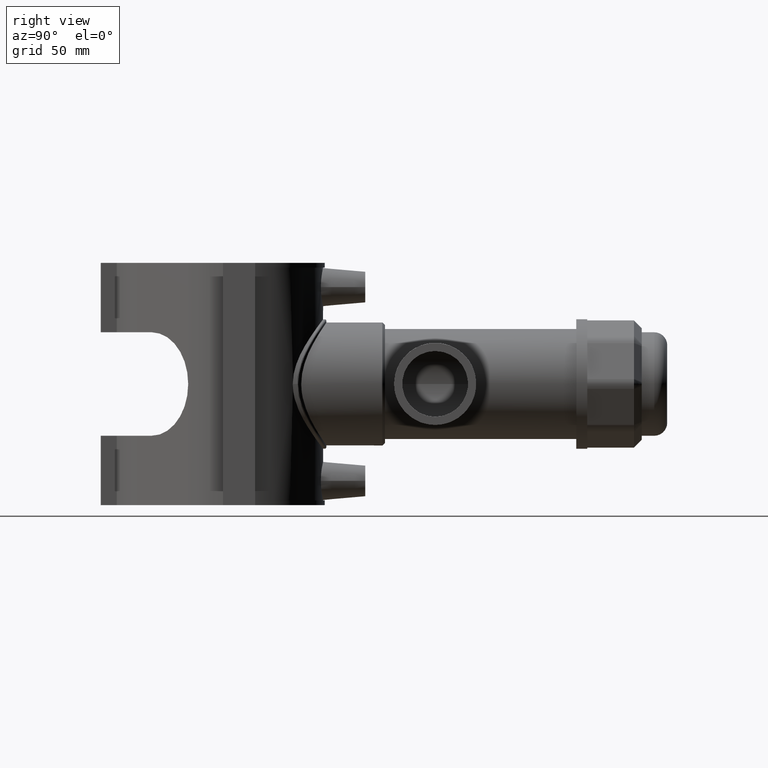
[diagram: clean part render]
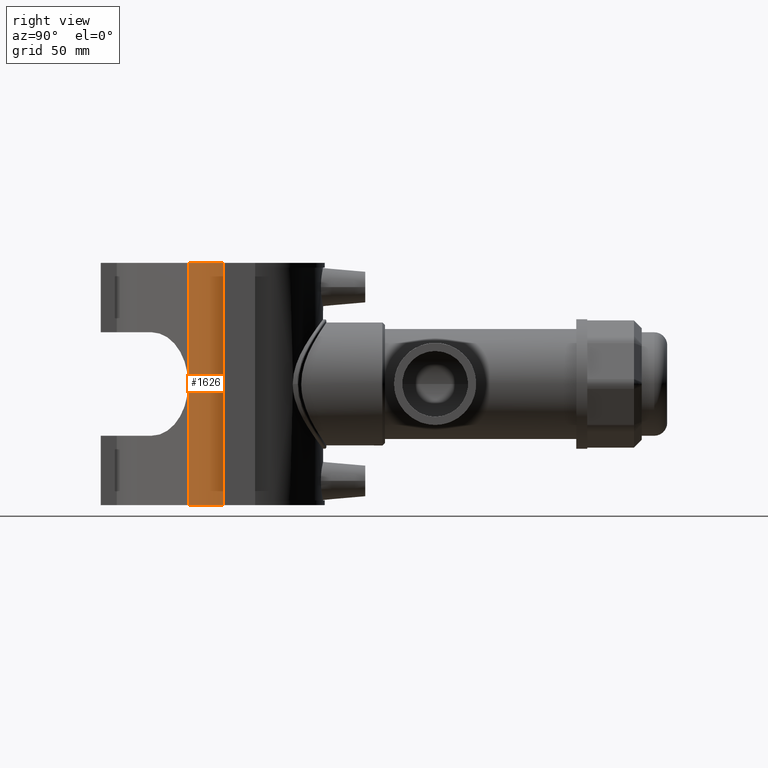
[diagram: same view with one face highlighted and labeled with its STEP entity id]
A machine part, right view. The second image highlights one B-rep face of the part: STEP entity #1626.
In plain terms, the highlighted cylindrical surface (partial cylindrical patch) has radius 34.9751 mm, axis along (0, 0, -1).
Its self-contained STEP definition (entity closure, byte-faithful):
#142=LINE('',#3249,#277);
#143=LINE('',#3252,#278);
#159=LINE('',#3294,#294);
#277=VECTOR('',#2224,59.);
#278=VECTOR('',#2227,59.);
#294=VECTOR('',#2271,118.);
#372=CYLINDRICAL_SURFACE('',#1799,34.9751164565775);
#470=FACE_OUTER_BOUND('',#604,.T.);
#604=EDGE_LOOP('',(#1433,#1434,#1435,#1436,#1437));
#678=CIRCLE('',#1800,34.9751164565775);
#679=CIRCLE('',#1801,34.9751164565775);
#800=VERTEX_POINT('',#3209);
#811=VERTEX_POINT('',#3247);
#812=VERTEX_POINT('',#3251);
#823=VERTEX_POINT('',#3291);
#824=VERTEX_POINT('',#3293);
#1013=EDGE_CURVE('',#800,#811,#142,.T.);
#1014=EDGE_CURVE('',#812,#800,#143,.T.);
#1034=EDGE_CURVE('',#823,#811,#678,.T.);
#1035=EDGE_CURVE('',#824,#823,#159,.T.);
#1036=EDGE_CURVE('',#812,#824,#679,.T.);
#1433=ORIENTED_EDGE('',*,*,#1034,.F.);
#1434=ORIENTED_EDGE('',*,*,#1035,.F.);
#1435=ORIENTED_EDGE('',*,*,#1036,.F.);
#1436=ORIENTED_EDGE('',*,*,#1014,.T.);
#1437=ORIENTED_EDGE('',*,*,#1013,.T.);
#1626=ADVANCED_FACE('',(#470),#372,.T.);
#1799=AXIS2_PLACEMENT_3D('',#3290,#2267,#2268);
#1800=AXIS2_PLACEMENT_3D('',#3292,#2269,#2270);
#1801=AXIS2_PLACEMENT_3D('',#3295,#2272,#2273);
#2224=DIRECTION('',(0.,0.,-1.));
#2227=DIRECTION('',(0.,0.,-1.));
#2267=DIRECTION('center_axis',(0.,0.,-1.));
#2268=DIRECTION('ref_axis',(0.707106780346934,-0.707106782026161,0.));
#2269=DIRECTION('center_axis',(0.,0.,-1.));
#2270=DIRECTION('ref_axis',(0.707106780346934,-0.707106782026161,0.));
#2271=DIRECTION('',(0.,0.,-1.));
#2272=DIRECTION('center_axis',(0.,0.,1.));
#2273=DIRECTION('ref_axis',(0.707106780346934,-0.707106782026161,0.));
#3209=CARTESIAN_POINT('',(24.7311419898696,-24.7311420486008,0.));
#3247=CARTESIAN_POINT('',(24.7311419898696,-24.7311420486008,-59.));
#3249=CARTESIAN_POINT('',(24.7311419898696,-24.7311420486008,59.));
#3251=CARTESIAN_POINT('',(24.7311419898696,-24.7311420486008,59.));
#3252=CARTESIAN_POINT('',(24.7311419898696,-24.7311420486008,59.));
#3290=CARTESIAN_POINT('Origin',(0.,0.,59.));
#3291=CARTESIAN_POINT('',(34.0999728174549,-7.77499999999998,-59.));
#3292=CARTESIAN_POINT('Origin',(0.,0.,-59.));
#3293=CARTESIAN_POINT('',(34.0999728174549,-7.77499999999998,59.));
#3294=CARTESIAN_POINT('',(34.0999728174549,-7.77499999999998,59.));
#3295=CARTESIAN_POINT('Origin',(0.,0.,59.));